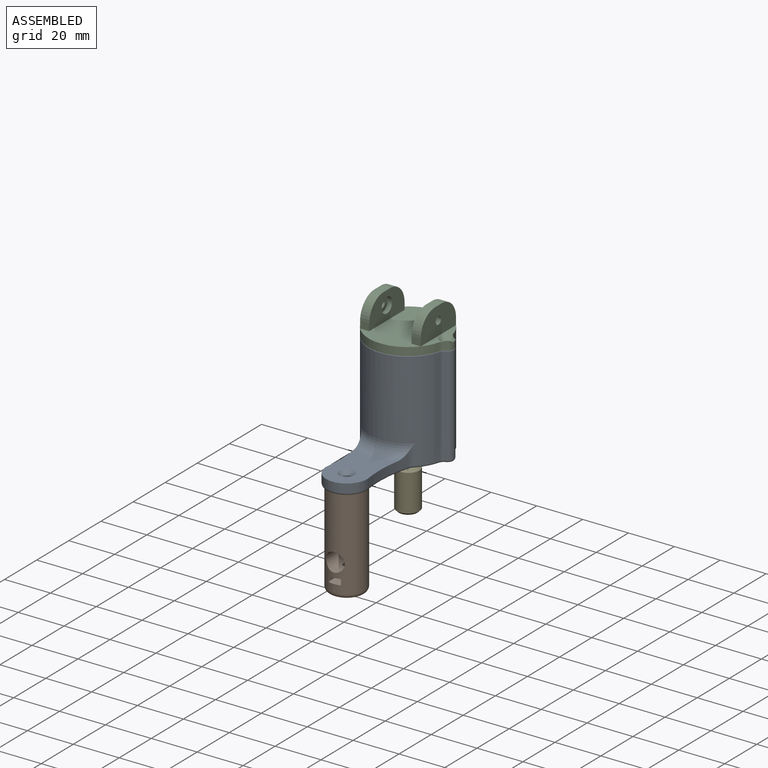
[diagram: assembled view]
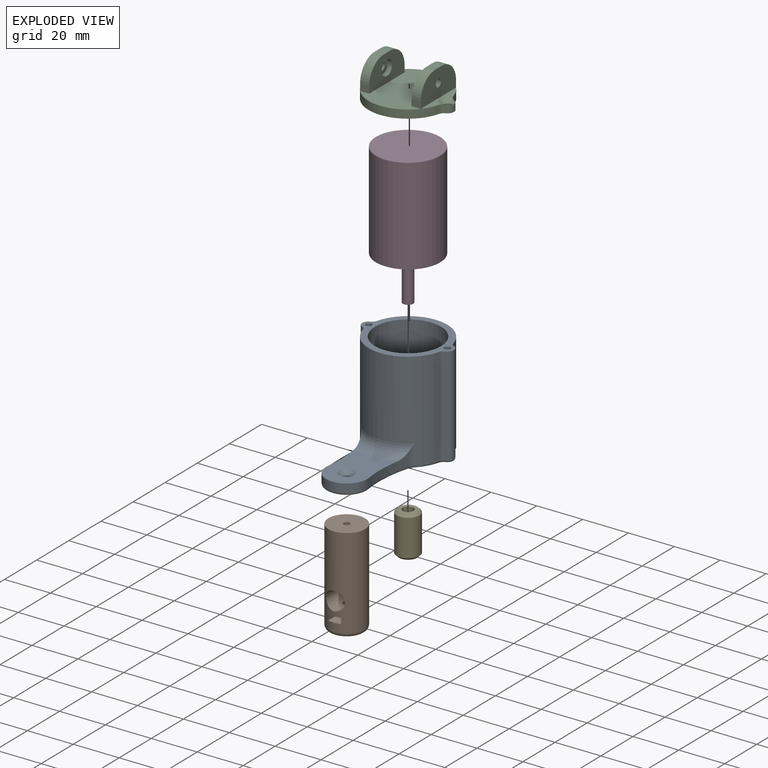
[diagram: exploded view]
GUIDED TOUR — MATED ASSEMBLY (Onshape document 24f0f6765a08515562113c64, AutoMate assembly 24f0f6765a08515562113c64_f87d265b5270cda58fc90bda_ae3d6f59af5e1648294b50b5_default)

This assembly has 5 components, labeled P0..P4 below (a component is one placed occurrence of a part; the same part can appear more than once), held together by 4 mates. A mate is a constraint between two components; its type names the relative motion it leaves free:
  FASTENED — locks the two components together rigidly (no relative motion),
  REVOLUTE — leaves rotation about the listed axis free (a hinge).
Axis/direction vectors are unit vectors and 'through' points are millimeter coordinates, both in the assembly's world frame.

MATES
  1. FASTENED "Fastened 1": P3 <-> P0, direction (0.000, 0.000, -1.000) through (-22.77, -10.39, -9.58) mm
  2. REVOLUTE "Revolute 1": P4 <-> P3, axis (0.000, 0.000, 1.000) through (-30.77, -10.39, -29.03) mm
  3. FASTENED "Fastened 2": P1 <-> P0, direction (0.000, 0.000, 1.000) through (-30.77, -48.59, -10.58) mm
  4. FASTENED "Fastened 3": P2 <-> P0, direction (0.000, 0.000, -1.000) through (-47.97, -10.39, 33.62) mm

ASSEMBLY ORDER
  1. P0 — the base component [order heuristic]
  2. P3 — core [order heuristic]
  3. P4 — core [order heuristic]
  4. P1 [order verified]
  5. P2 [order verified]
Order-tag legend:
  [order verified] — this step's position reverses a verified removal order: the component was checked to insert without passing through the ones already placed.
  [order heuristic] — the first 3 components form the assembly's core: parts whose collision-free extraction could not be verified, listed in mate-graph order.

Of the 5 components, 3 carry the full construction recipe — the FeatureScript program that regenerates the part's solid from scratch; the rest are supplied as boundary geometry only.
Each toured component is shown spotlighted twice — in the assembled view, then in the exploded view, where a leader line traces a displaced component back to its assembled socket (saturated green if recipe-attached, orange if geometry-only; every other component desaturated gray) — followed by its recipe or geometry summary and the mates that hold it.
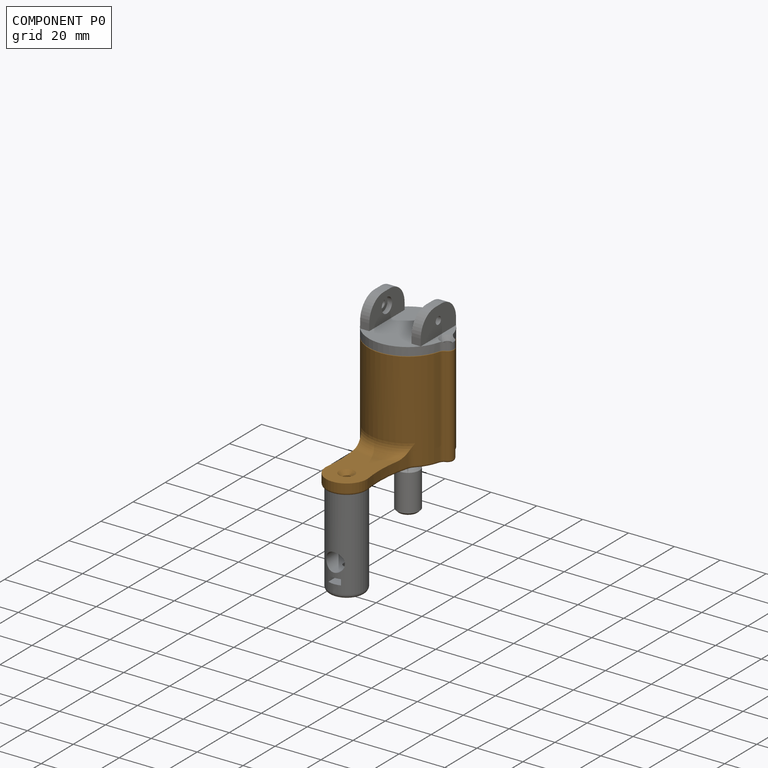
[diagram: component P0 — assembled]
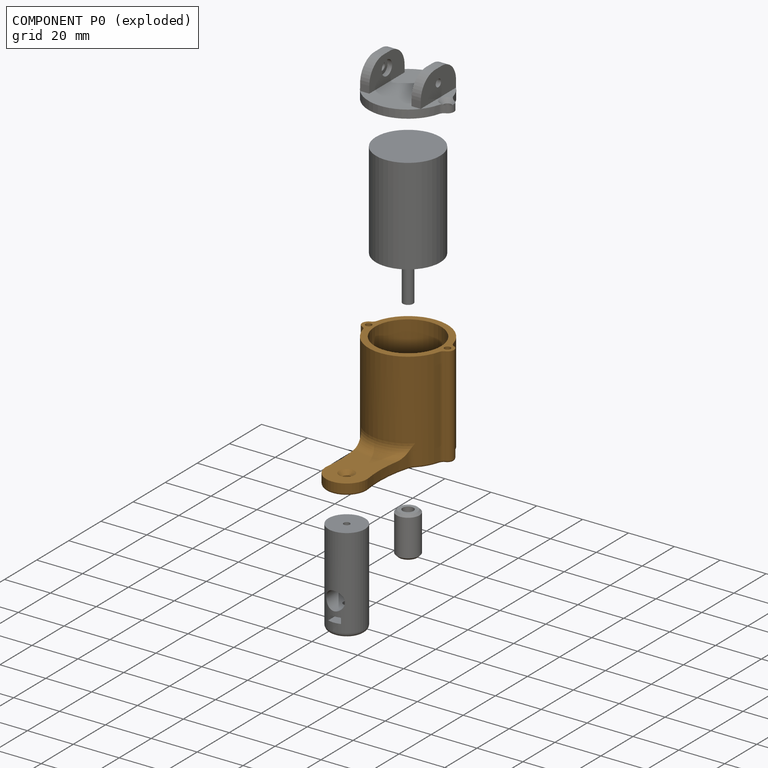
[diagram: component P0 — exploded]
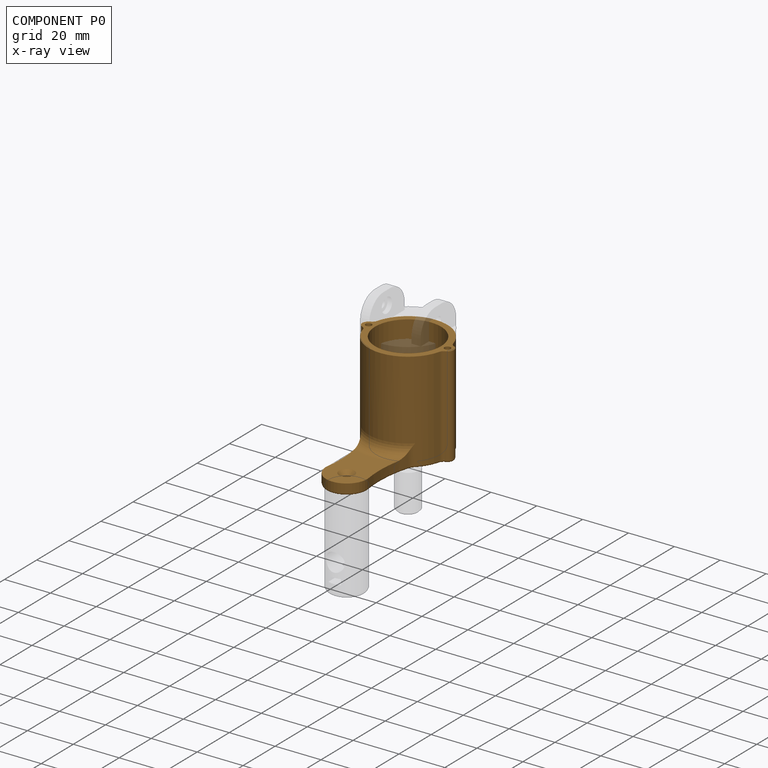
[diagram: component P0 — x-ray view]
COMPONENT P0 — geometry summary (no construction recipe available for this part):
  bounding box: 66.6 x 44.0 x 40.5 mm
  B-rep topology: 1 solid, 42 faces, 202 edges
  volume: 16258 mm^3 (14% of its bounding box)
  symmetry: mirror-symmetric across its x mid-plane
Held by: FASTENED mate "Fastened 1" to P3; FASTENED mate "Fastened 2" to P1; FASTENED mate "Fastened 3" to P2.
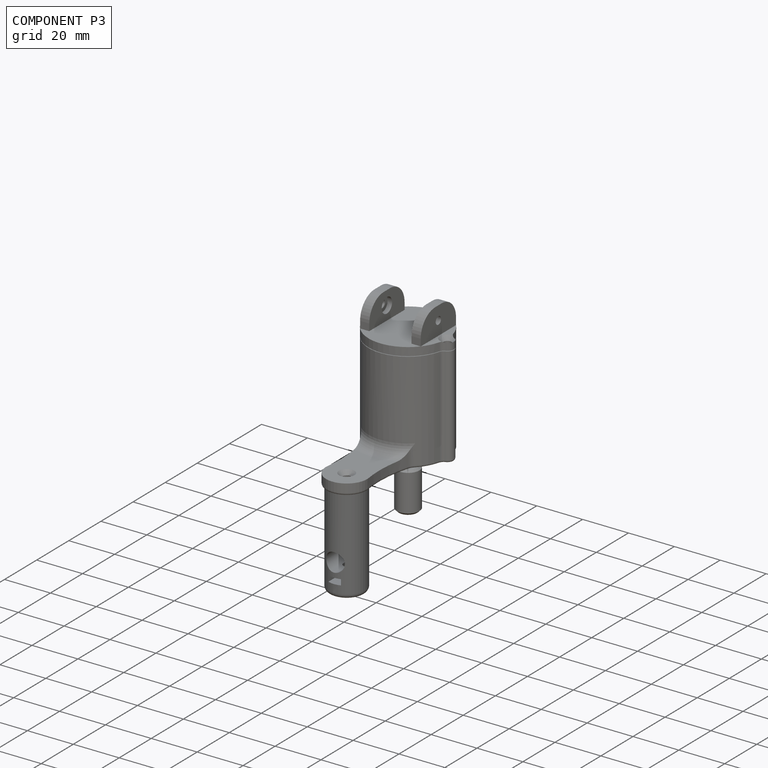
[diagram: component P3 — assembled]
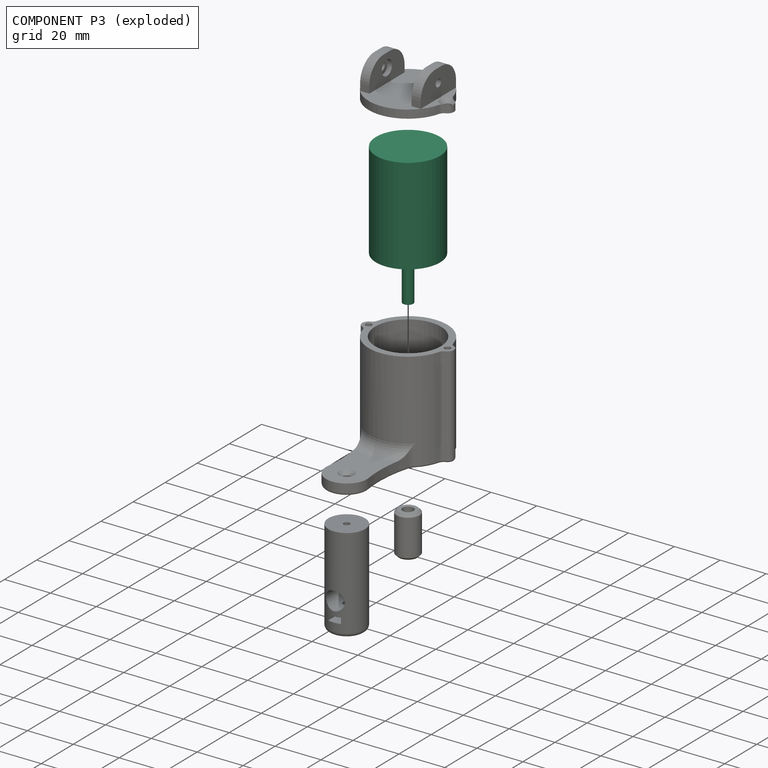
[diagram: component P3 — exploded]
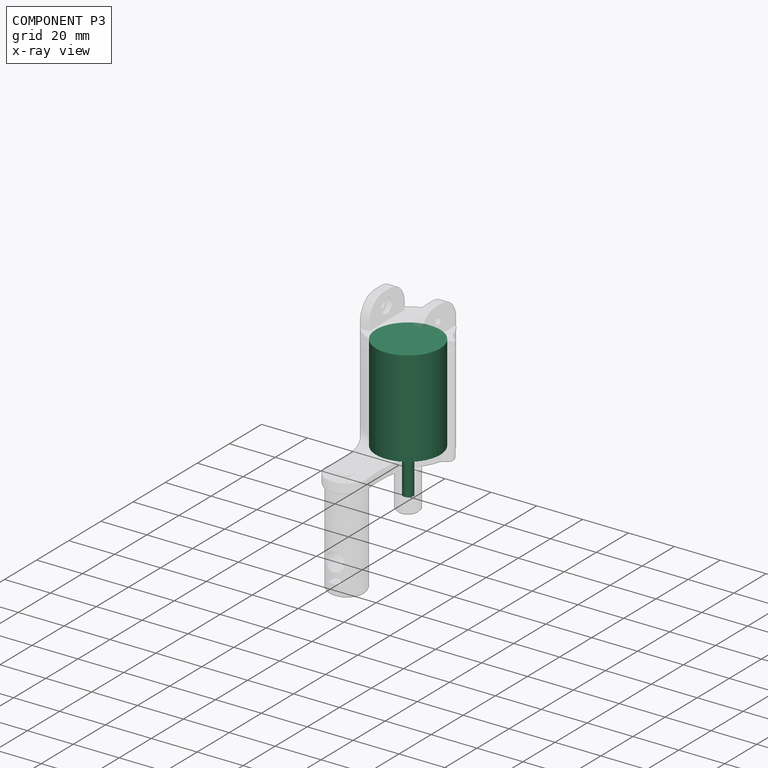
[diagram: component P3 — x-ray view]
COMPONENT P3 — recipe-attached (CADFS 00420545, mesh-verified: the recipe's output STEP matches this component's geometry to below the mesh-comparison resolution (tessellation chordal tolerance ~0.11 mm)).
Held by: FASTENED mate "Fastened 1" to P0; REVOLUTE mate "Revolute 1" to P4.
Construction recipe (FeatureScript — the CAD program that rebuilds this solid; sketch coordinates are in the units given by the * unit suffixes, e.g. mm):

FeatureScript 1511;
import(path : "onshape/std/geometry.fs", version : "1511.0");
import(path : "onshape/std/common.fs", version : "1511.0");
const mm = millimeter;
const VERTEX = EntityType.VERTEX;
const EDGE = EntityType.EDGE;
const FACE = EntityType.FACE;
const BODY = EntityType.BODY;
function v(x, y){return vector(x, y);}
function OD(order){return orderDisambiguation(order);}
function OSD(set){return originalSetDisambiguation(set);}
function TD(topology){return topologyDisambiguation(topology);}
function TDD(query){return trueDependencyDisambiguation(query);}
function sQuery(a, b, c) {return sketchEntityQuery(a, b, c);}

annotation { "Feature Type Name" : "Feature", "Feature Type Description" : "" }
export const myFeature = defineFeature(function(context is Context, id is Id, definition is map)
    precondition{}
    {
        {
            var Q0;
            Q0=qCreatedBy(makeId("Top.planeOp"),FACE);
            var sketch = newSketch(context, id + "F0", { "sketchPlane" : qUnion([Q0])});
            skCircle(sketch, "E0", {"center": v(0, 0) * mm, "radius": 14 * mm});
            skSolve(sketch);
        }
        {
            var Q0;
            Q0=makeQuery(id+"F0.imprint","IMPRINT",FACE,{"disambiguationData":[TD([[makeQuery(id+"F0.imprint","IMPRINT",EDGE,{"derivedFrom":sQuery(id+"F0.wireOp",EDGE,"E0")}),1.0]])]});
            extrude(context, id + "F1", {"entities" : qUnion([Q0]), "depth" : 42 * mm});
        }
        {
            var Q0;
            Q0=makeQuery(id+"F1.opExtrude","CAP_FACE",FACE,{"disambiguationData":[OSD([sQuery(id+"F0.wireOp",EDGE,"E0")])],"isStart":false});
            var sketch = newSketch(context, id + "F2", { "sketchPlane" : qUnion([Q0])});
            skCircle(sketch, "E1", {"center": v(0, 0) * mm, "radius": 5 * mm});
            skPoint(sketch, "E2", {"position": v(-8, 0) * mm});
            skPoint(sketch, "E3", {"position": v(8, 0) * mm});
            skSolve(sketch);
        }
        {
            var Q0;
            Q0=makeQuery(id+"F2.imprint","IMPRINT",FACE,{"disambiguationData":[TD([[makeQuery(id+"F2.imprint","IMPRINT",EDGE,{"derivedFrom":sQuery(id+"F2.wireOp",EDGE,"E1")}),1.0]])]});
            extrude(context, id + "F3", {"entities" : qUnion([Q0]), "operationType" : NewBodyOperationType.ADD, "depth" : 2.2 * mm});
        }
        {
            var Q0;
            Q0=makeQuery(id+"F3.opExtrude","CAP_FACE",FACE,{"disambiguationData":[OSD([sQuery(id+"F2.wireOp",EDGE,"E1")])],"isStart":false});
            var sketch = newSketch(context, id + "F4", { "sketchPlane" : qUnion([Q0])});
            skCircle(sketch, "E4", {"center": v(0, 0) * mm, "radius": 2.25 * mm});
            skSolve(sketch);
        }
        {
            var Q0;
            Q0=makeQuery(id+"F4.imprint","IMPRINT",FACE,{"disambiguationData":[TD([[makeQuery(id+"F4.imprint","IMPRINT",EDGE,{"derivedFrom":sQuery(id+"F4.wireOp",EDGE,"E4")}),1.0]])]});
            extrude(context, id + "F5", {"entities" : qUnion([Q0]), "operationType" : NewBodyOperationType.ADD, "depth" : (22 - 4.75) * mm});
        }
        {
            var Q0;
            Q0=sQuery(id+"F2.wireOp",VERTEX,"E2");
            var Q1;
            Q1=sQuery(id+"F2.wireOp",VERTEX,"E3");
            var Q2;
            Q2=makeQuery(id+"F1.opExtrude","SWEPT_BODY",BODY,{"disambiguationData":[OSD([sQuery(id+"F0.wireOp",EDGE,"E0")])]});
            hole(context, id + "F6", {"style" : HoleStyle.SIMPLE, "endStyle" : HoleEndStyle.BLIND, "holeDiameter" : 2.2 * mm, "holeDepth" : 4 * mm, "isTappedThrough" : true, "tappedDepth" : 12 * mm, "tapClearance" : 3, "locations" : qUnion([Q0, Q1]), "scope" : qUnion([Q2])});
        }
    });
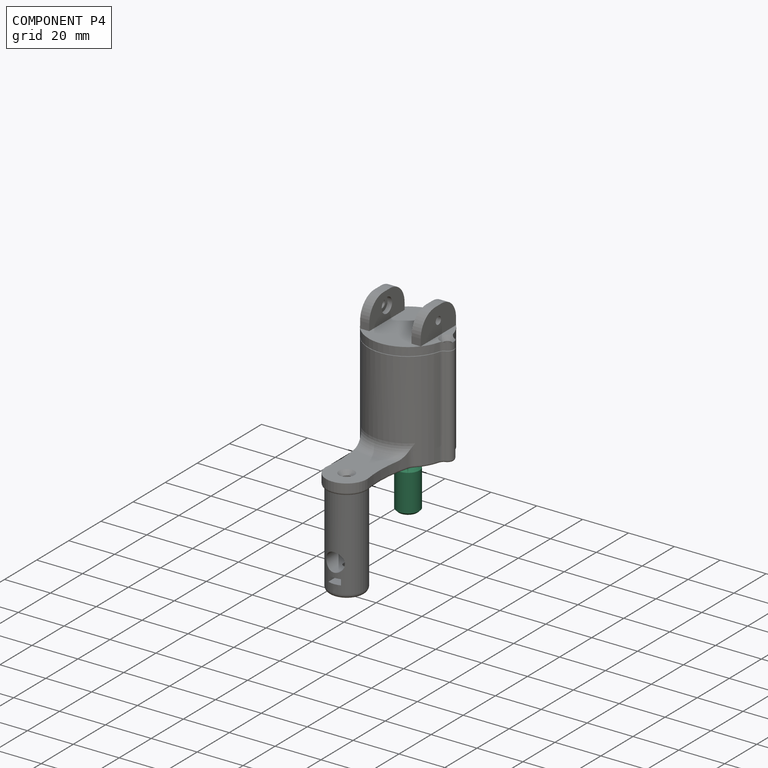
[diagram: component P4 — assembled]
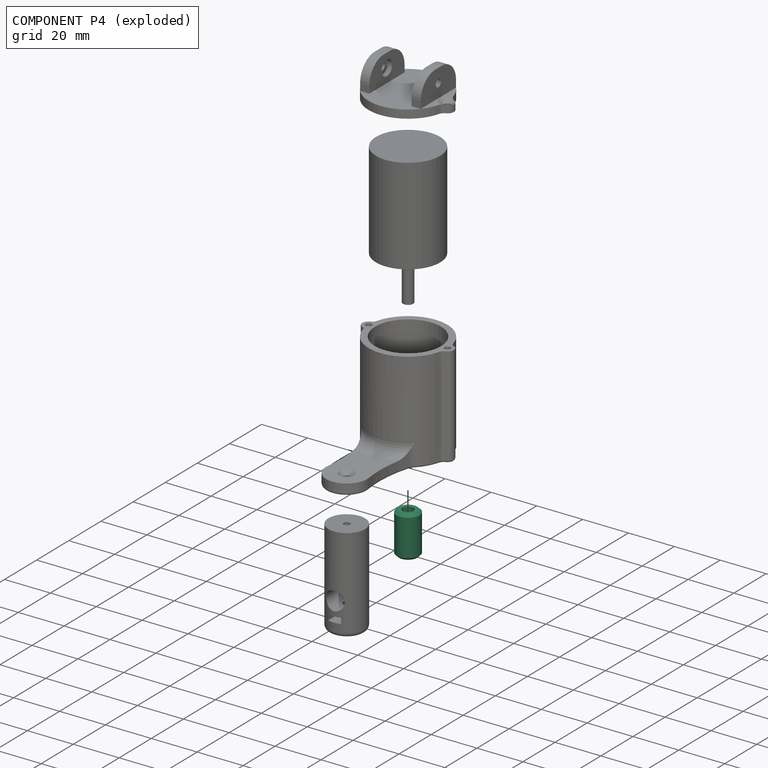
[diagram: component P4 — exploded]
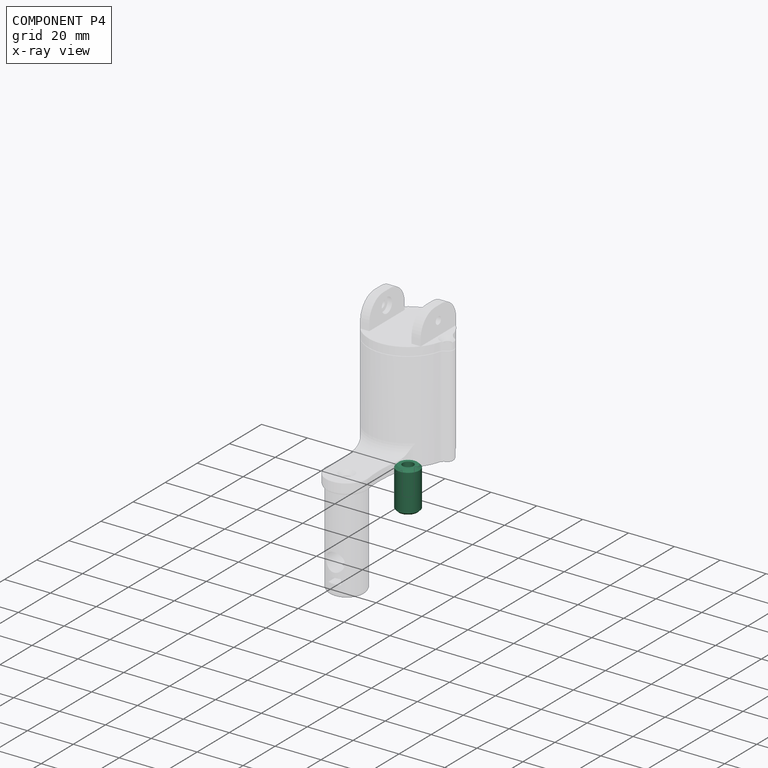
[diagram: component P4 — x-ray view]
COMPONENT P4 — recipe-attached (CADFS 00420546, mesh-verified: the recipe's output STEP matches this component's geometry to below the mesh-comparison resolution (tessellation chordal tolerance ~0.0343 mm)).
Held by: REVOLUTE mate "Revolute 1" to P3.
Construction recipe (FeatureScript — the CAD program that rebuilds this solid; sketch coordinates are in the units given by the * unit suffixes, e.g. mm):

FeatureScript 1511;
import(path : "onshape/std/geometry.fs", version : "1511.0");
import(path : "onshape/std/common.fs", version : "1511.0");
const mm = millimeter;
const VERTEX = EntityType.VERTEX;
const EDGE = EntityType.EDGE;
const FACE = EntityType.FACE;
const BODY = EntityType.BODY;
function v(x, y){return vector(x, y);}
function OD(order){return orderDisambiguation(order);}
function OSD(set){return originalSetDisambiguation(set);}
function TD(topology){return topologyDisambiguation(topology);}
function TDD(query){return trueDependencyDisambiguation(query);}
function sQuery(a, b, c) {return sketchEntityQuery(a, b, c);}

annotation { "Feature Type Name" : "Feature", "Feature Type Description" : "" }
export const myFeature = defineFeature(function(context is Context, id is Id, definition is map)
    precondition{}
    {
        {
            var Q0;
            Q0=qCreatedBy(makeId("Top.planeOp"),FACE);
            var sketch = newSketch(context, id + "F0", { "sketchPlane" : qUnion([Q0])});
            skCircle(sketch, "E0", {"center": v(0, 0) * mm, "radius": 5 * mm});
            skSolve(sketch);
        }
        {
            var Q0;
            Q0=makeQuery(id+"F0.imprint","IMPRINT",FACE,{"disambiguationData":[TD([[makeQuery(id+"F0.imprint","IMPRINT",EDGE,{"derivedFrom":sQuery(id+"F0.wireOp",EDGE,"E0")}),1.0]])]});
            extrude(context, id + "F1", {"entities" : qUnion([Q0]), "depth" : 18 * mm});
        }
        {
            var Q0;
            Q0=makeQuery(id+"F1.opExtrude","CAP_FACE",FACE,{"disambiguationData":[OSD([sQuery(id+"F0.wireOp",EDGE,"E0")])],"isStart":false});
            var sketch = newSketch(context, id + "F2", { "sketchPlane" : qUnion([Q0])});
            skCircle(sketch, "E1", {"center": v(0, 0) * mm, "radius": 2.4 * mm});
            skSolve(sketch);
        }
        {
            var Q0;
            Q0=makeQuery(id+"F2.imprint","IMPRINT",FACE,{"disambiguationData":[TD([[makeQuery(id+"F2.imprint","IMPRINT",EDGE,{"derivedFrom":sQuery(id+"F2.wireOp",EDGE,"E1")}),1.0]])]});
            extrude(context, id + "F3", {"entities" : qUnion([Q0]), "operationType" : NewBodyOperationType.REMOVE, "oppositeDirection" : true, "depth" : 12 * mm});
        }
        {
            var Q0;
            Q0=makeQuery(id+"F1.opExtrude","CAP_FACE",FACE,{"disambiguationData":[OSD([sQuery(id+"F0.wireOp",EDGE,"E0")])],"isStart":true});
            var sketch = newSketch(context, id + "F4", { "sketchPlane" : qUnion([Q0])});
            skCircle(sketch, "E2", {"center": v(1.2, 0) * mm, "radius": 1.6 * mm});
            skSolve(sketch);
        }
        {
            var Q0;
            Q0=makeQuery(id+"F4.imprint","IMPRINT",FACE,{"disambiguationData":[TD([[makeQuery(id+"F4.imprint","IMPRINT",EDGE,{"derivedFrom":sQuery(id+"F4.wireOp",EDGE,"E2")}),1.0]])]});
            extrude(context, id + "F5", {"entities" : qUnion([Q0]), "operationType" : NewBodyOperationType.REMOVE, "oppositeDirection" : true, "depth" : 5 * mm});
        }
        {
            var Q0;
            Q0=makeQuery(id+"F5.boolean.opBoolean","COPY",FACE,{"derivedFrom":makeQuery(id+"F5.opExtrude","CAP_FACE",FACE,{"disambiguationData":[OSD([sQuery(id+"F4.wireOp",EDGE,"E2")])],"isStart":false})});
            var Q1;
            Q1=makeQuery(id+"F3.boolean.opBoolean","COPY",FACE,{"derivedFrom":makeQuery(id+"F3.opExtrude","CAP_FACE",FACE,{"disambiguationData":[OSD([sQuery(id+"F2.wireOp",EDGE,"E1")])],"isStart":false})});
            chamfer(context, id + "F6", {"entities" : qUnion([Q0, Q1]), "width" : .6 * mm, "tangentPropagation" : true});
        }
        {
            var Q0;
            Q0=makeQuery(id+"F1.opExtrude","CAP_EDGE",EDGE,{"disambiguationData":[OSD([sQuery(id+"F0.wireOp",EDGE,"E0")])],"isStart":true});
            var Q1;
            Q1=makeQuery(id+"F1.opExtrude","CAP_EDGE",EDGE,{"disambiguationData":[OSD([sQuery(id+"F0.wireOp",EDGE,"E0")])],"isStart":false});
            chamfer(context, id + "F7", {"entities" : qUnion([Q0, Q1]), "width" : 1 * mm, "tangentPropagation" : true});
        }
    });
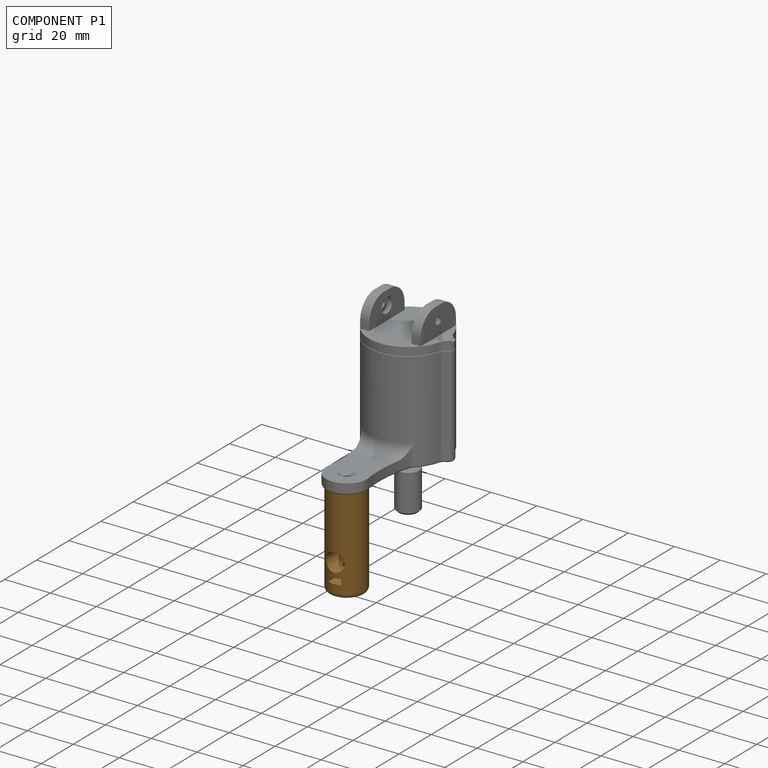
[diagram: component P1 — assembled]
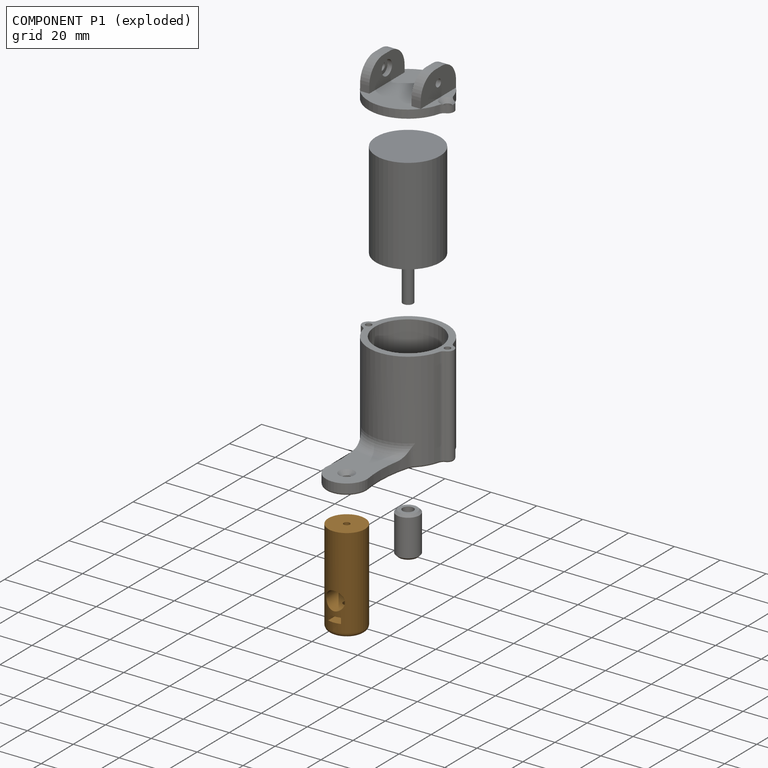
[diagram: component P1 — exploded]
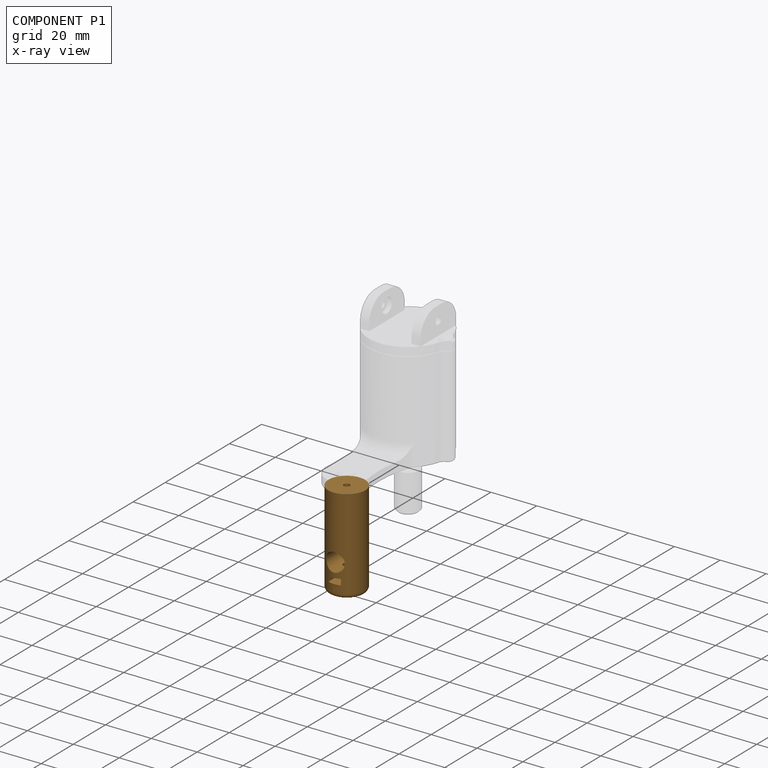
[diagram: component P1 — x-ray view]
COMPONENT P1 — geometry summary (no construction recipe available for this part):
  bounding box: 41.4 x 17.3 x 17.3 mm
  B-rep topology: 1 solid, 13 faces, 58 edges
  volume: 7103 mm^3 (57% of its bounding box)
  symmetry: 2-fold rotationally symmetric about the z axis; mirror-symmetric across its x mid-plane, y mid-plane
Held by: FASTENED mate "Fastened 2" to P0.
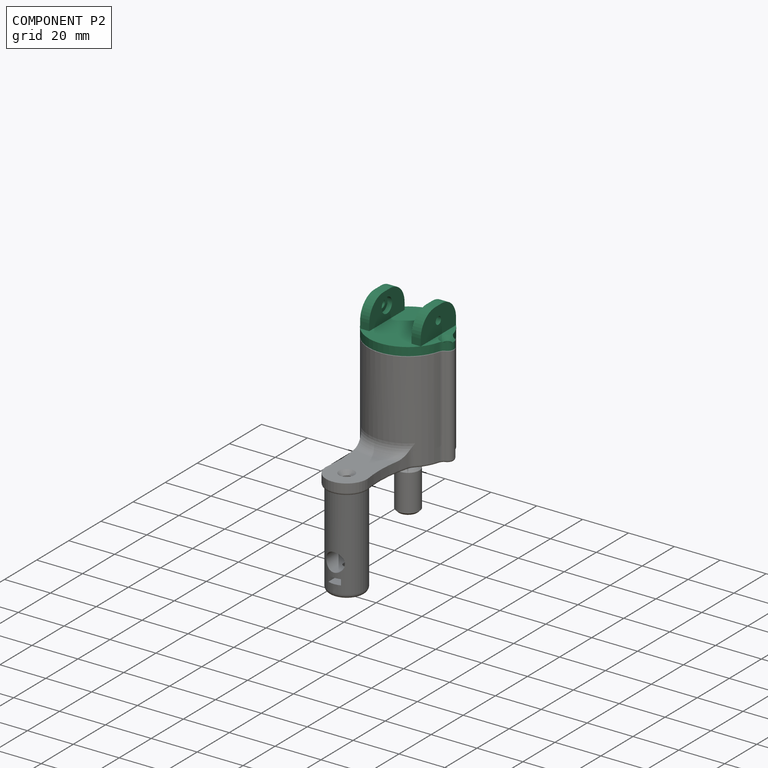
[diagram: component P2 — assembled]
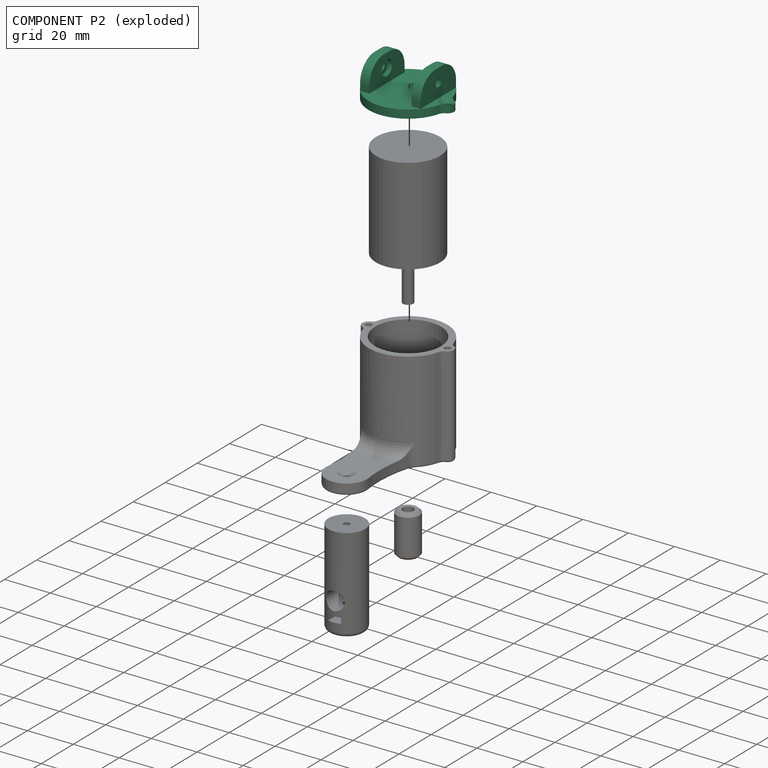
[diagram: component P2 — exploded]
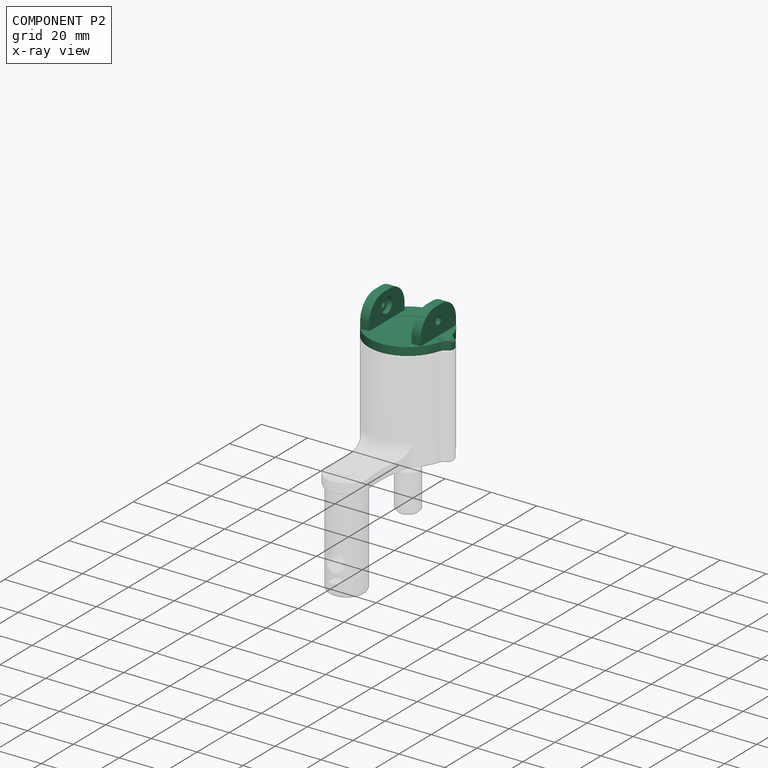
[diagram: component P2 — x-ray view]
COMPONENT P2 — recipe-attached (CADFS 00420541, mesh-verified: the recipe's output STEP matches this component's geometry to below the mesh-comparison resolution (tessellation chordal tolerance ~0.0825 mm)).
Held by: FASTENED mate "Fastened 3" to P0.
Construction recipe (FeatureScript — the CAD program that rebuilds this solid; sketch coordinates are in the units given by the * unit suffixes, e.g. mm):

FeatureScript 1511;
import(path : "onshape/std/geometry.fs", version : "1511.0");
import(path : "onshape/std/common.fs", version : "1511.0");
const mm = millimeter;
const VERTEX = EntityType.VERTEX;
const EDGE = EntityType.EDGE;
const FACE = EntityType.FACE;
const BODY = EntityType.BODY;
function v(x, y){return vector(x, y);}
function OD(order){return orderDisambiguation(order);}
function OSD(set){return originalSetDisambiguation(set);}
function TD(topology){return topologyDisambiguation(topology);}
function TDD(query){return trueDependencyDisambiguation(query);}
function sQuery(a, b, c) {return sketchEntityQuery(a, b, c);}

annotation { "Feature Type Name" : "Feature", "Feature Type Description" : "" }
export const myFeature = defineFeature(function(context is Context, id is Id, definition is map)
    precondition{}
    {
        {
            var Q0;
            Q0=qCreatedBy(makeId("Top.planeOp"),FACE);
            var sketch = newSketch(context, id + "F0", { "sketchPlane" : qUnion([Q0])});
            skArc(sketch, "E0", {"start": v(16.97, 2.8) * mm, "mid": v(0, 17.2) * mm, "end": v(-16.97, 2.8) * mm});
            skArc(sketch, "E1", {"start": v(-16.97, 2.8) * mm, "mid": v(-20, 0) * mm, "end": v(-16.97, -2.8) * mm});
            skArc(sketch, "E2", {"start": v(16.97, -2.8) * mm, "mid": v(20, 0) * mm, "end": v(16.97, 2.8) * mm});
            skArc(sketch, "E3.trimOffspring", {"start": v(-16.97, -2.8) * mm, "mid": v(0, -17.2) * mm, "end": v(16.97, -2.8) * mm});
            skSolve(sketch);
        }
        {
            var Q0;
            Q0=makeQuery(id+"F0.imprint","IMPRINT",FACE,{"disambiguationData":[TD([[makeQuery(id+"F0.imprint","IMPRINT",EDGE,{"derivedFrom":sQuery(id+"F0.wireOp",EDGE,"E0")}),1.0]])]});
            extrude(context, id + "F1", {"entities" : qUnion([Q0]), "depth" : 3.6 * mm});
        }
        {
            var Q0;
            Q0=makeQuery(id+"F1.opExtrude","SWEPT_EDGE",EDGE,{"disambiguationData":[OSD([sQuery(id+"F0.wireOp",EDGE,"E1"),sQuery(id+"F0.wireOp",EDGE,"E3.trimOffspring")])]});
            var Q1;
            Q1=makeQuery(id+"F1.opExtrude","SWEPT_EDGE",EDGE,{"disambiguationData":[OSD([sQuery(id+"F0.wireOp",EDGE,"E2"),sQuery(id+"F0.wireOp",EDGE,"E3.trimOffspring")])]});
            var Q2;
            Q2=makeQuery(id+"F1.opExtrude","SWEPT_EDGE",EDGE,{"disambiguationData":[OSD([sQuery(id+"F0.wireOp",EDGE,"E0"),sQuery(id+"F0.wireOp",EDGE,"E2")])]});
            var Q3;
            Q3=makeQuery(id+"F1.opExtrude","SWEPT_EDGE",EDGE,{"disambiguationData":[OSD([sQuery(id+"F0.wireOp",EDGE,"E0"),sQuery(id+"F0.wireOp",EDGE,"E1")])]});
            fillet(context, id + "F2", {"entities" : qUnion([Q0, Q1, Q2, Q3]), "radius" : 2.8 * mm, "tangentPropagation" : true, "allowEdgeOverflow" : false});
        }
        {
            var Q0;
            Q0=makeQuery(id+"F1.opExtrude","CAP_FACE",FACE,{"disambiguationData":[OSD([sQuery(id+"F0.wireOp",EDGE,"E0"),sQuery(id+"F0.wireOp",EDGE,"E1"),sQuery(id+"F0.wireOp",EDGE,"E2"),sQuery(id+"F0.wireOp",EDGE,"E3.trimOffspring")])],"isStart":false});
            var sketch = newSketch(context, id + "F3", { "sketchPlane" : qUnion([Q0])});
            skPoint(sketch, "E4", {"position": v(-17.2, 0) * mm});
            skPoint(sketch, "E5", {"position": v(17.2, 0) * mm});
            skCircle(sketch, "E6", {"center": v(0, 10) * mm, "radius": 2.5 * mm});
            skLineSegment(sketch, "E7.bottom", {"start": v(-13.22, 11) * mm, "end": v(-9.22, 11) * mm});
            skLineSegment(sketch, "E7.top", {"start": v(-13.22, -11) * mm, "end": v(-9.22, -11) * mm});
            skLineSegment(sketch, "E7.left", {"start": v(-13.22, 11) * mm, "end": v(-13.22, -11) * mm});
            skLineSegment(sketch, "E7.right", {"start": v(-9.22, 11) * mm, "end": v(-9.22, -11) * mm});
            skPoint(sketch, "E7.middle", {"position": v(-11.22, 0) * mm});
            skLineSegment(sketch, "E8.bottom", {"start": v(13.22, -11) * mm, "end": v(9.22, -11) * mm});
            skLineSegment(sketch, "E8.top", {"start": v(13.22, 11) * mm, "end": v(9.22, 11) * mm});
            skLineSegment(sketch, "E8.left", {"start": v(13.22, -11) * mm, "end": v(13.22, 11) * mm});
            skLineSegment(sketch, "E8.right", {"start": v(9.22, -11) * mm, "end": v(9.22, 11) * mm});
            skPoint(sketch, "E8.middle", {"position": v(11.22, 0) * mm});
            skSolve(sketch);
        }
        {
            var Q0;
            Q0=sQuery(id+"F3.wireOp",VERTEX,"E4");
            var Q1;
            Q1=sQuery(id+"F3.wireOp",VERTEX,"E5");
            var Q2;
            Q2=makeQuery(id+"F1.opExtrude","SWEPT_BODY",BODY,{"disambiguationData":[OSD([sQuery(id+"F0.wireOp",EDGE,"E0"),sQuery(id+"F0.wireOp",EDGE,"E1"),sQuery(id+"F0.wireOp",EDGE,"E2"),sQuery(id+"F0.wireOp",EDGE,"E3.trimOffspring")])]});
            hole(context, id + "F4", {"style" : HoleStyle.C_SINK, "endStyle" : HoleEndStyle.BLIND, "standardTappedOrClearance" : lookupTablePath({ "standard" : "ISO", "fit" : "Normal", "size" : "M3", "type" : "Clearance" }), "standardBlindInLast" : lookupTablePath({ "fit" : "Standard", "standard" : "ISO", "size" : "M3", "type" : "Clearance" }), "holeDiameter" : 3.3 * mm, "cSinkDiameter" : 6.72 * mm, "cSinkAngle" : 90 * degree, "holeDepth" : 20 * mm, "isTappedThrough" : true, "tappedDepth" : 12 * mm, "tapClearance" : 3, "locations" : qUnion([Q0, Q1]), "scope" : qUnion([Q2])});
        }
        {
            var Q0;
            Q0=makeQuery(id+"F3.imprint","IMPRINT",FACE,{"disambiguationData":[TD([[makeQuery(id+"F3.imprint","IMPRINT",EDGE,{"derivedFrom":sQuery(id+"F3.wireOp",EDGE,"E6")}),1.0]])]});
            extrude(context, id + "F5", {"entities" : qUnion([Q0]), "operationType" : NewBodyOperationType.REMOVE, "endBound" : BoundingType.UP_TO_NEXT, "oppositeDirection" : true, "depth" : 25 * mm});
        }
        {
            var Q0;
            Q0=makeQuery(id+"F3.imprint","IMPRINT",FACE,{"disambiguationData":[TD([[makeQuery(id+"F3.imprint","IMPRINT",EDGE,{"derivedFrom":sQuery(id+"F3.wireOp",EDGE,"E7.bottom")}),-1.0]])]});
            var Q1;
            Q1=makeQuery(id+"F3.imprint","IMPRINT",FACE,{"disambiguationData":[TD([[makeQuery(id+"F3.imprint","IMPRINT",EDGE,{"derivedFrom":sQuery(id+"F3.wireOp",EDGE,"E8.bottom")}),-1.0]])]});
            extrude(context, id + "F6", {"entities" : qUnion([Q0, Q1]), "operationType" : NewBodyOperationType.ADD, "depth" : 12 * mm});
        }
        {
            var Q0;
            Q0=makeQuery(id+"F6.opExtrude","SWEPT_FACE",FACE,{"disambiguationData":[OSD([sQuery(id+"F3.wireOp",EDGE,"E7.right")])]});
            var sketch = newSketch(context, id + "F7", { "sketchPlane" : qUnion([Q0])});
            skPoint(sketch, "E9", {"position": v(0, 9.6) * mm});
            skPoint(sketch, "E9.positionSnap0", {"position": v(-11, 9.6) * mm});
            skPoint(sketch, "E9.positionSnap1", {"position": v(0, 15.6) * mm});
            skSolve(sketch);
        }
        {
            var Q0;
            Q0=makeQuery(id+"F6.opExtrude","SWEPT_FACE",FACE,{"disambiguationData":[OSD([sQuery(id+"F3.wireOp",EDGE,"E8.right")])]});
            var sketch = newSketch(context, id + "F8", { "sketchPlane" : qUnion([Q0])});
            skPoint(sketch, "E10", {"position": v(0, 9.6) * mm});
            skPoint(sketch, "E10.positionSnap0", {"position": v(0, 15.6) * mm});
            skPoint(sketch, "E10.positionSnap1", {"position": v(-11, 9.6) * mm});
            skSolve(sketch);
        }
        {
            var Q0;
            Q0=sQuery(id+"F8.wireOp",VERTEX,"E10");
            var Q1;
            Q1=sQuery(id+"F7.wireOp",VERTEX,"E9");
            var Q2;
            Q2=makeQuery(id+"F1.opExtrude","SWEPT_BODY",BODY,{"disambiguationData":[OSD([sQuery(id+"F0.wireOp",EDGE,"E0"),sQuery(id+"F0.wireOp",EDGE,"E1"),sQuery(id+"F0.wireOp",EDGE,"E2"),sQuery(id+"F0.wireOp",EDGE,"E3.trimOffspring")])]});
            hole(context, id + "F9", {"style" : HoleStyle.C_BORE, "endStyle" : HoleEndStyle.BLIND, "holeDiameter" : 3.3 * mm, "cBoreDiameter" : 6.5 * mm, "cBoreDepth" : 2 * mm, "holeDepth" : 20 * mm, "isTappedThrough" : true, "tappedDepth" : 12 * mm, "tapClearance" : 3, "locations" : qUnion([Q0, Q1]), "scope" : qUnion([Q2])});
        }
        {
            var Q0;
            Q0=makeQuery(id+"F6.opExtrude","CAP_EDGE",EDGE,{"disambiguationData":[OSD([sQuery(id+"F3.wireOp",EDGE,"E8.top")])],"isStart":false});
            var Q1;
            Q1=makeQuery(id+"F6.opExtrude","CAP_EDGE",EDGE,{"disambiguationData":[OSD([sQuery(id+"F3.wireOp",EDGE,"E7.bottom")])],"isStart":false});
            var Q2;
            Q2=makeQuery(id+"F6.opExtrude","CAP_EDGE",EDGE,{"disambiguationData":[OSD([sQuery(id+"F3.wireOp",EDGE,"E7.top")])],"isStart":false});
            var Q3;
            Q3=makeQuery(id+"F6.opExtrude","CAP_EDGE",EDGE,{"disambiguationData":[OSD([sQuery(id+"F3.wireOp",EDGE,"E8.bottom")])],"isStart":false});
            fillet(context, id + "F10", {"entities" : qUnion([Q0, Q1, Q2, Q3]), "radius" : 9 * mm, "tangentPropagation" : true, "allowEdgeOverflow" : false});
        }
    });
PROVENANCE & LICENSES
Assembly (occurrences, transforms, mates, per-part STEP geometry): AutoMate dataset, Zenodo record 7776208, CC0.
Construction recipes: CADFS (HuggingFace VladPyatov/CADFS, CC-BY-4.0, layered over the ABC dataset), FeatureScript reconstruction programs keyed by ABC model id.
Join: ABC meta listings map ABC model id -> Onshape documentId; within a shared document, parts are matched by geometric signature (bounding-box dims + volume at 0.1% relative tolerance, exact B-rep face/solid counts).
Verification: 3 of this assembly's 5 components carry a recipe attachment, and every attachment is mesh-verified: the CADFS STEP and the AutoMate member STEP were compared as meshes in their shared local frame (symmetric sampled-point-to-mesh distance); worst across the 3 attachments: below the mesh-comparison resolution (tessellation chordal tolerance ~0.11 mm) on a 73 mm part.
Renders: orthographic iso camera (az 35 / el 25); the floor grid conveys scale (grid pitch printed in each image; no ruler). In the exploded view each component is displaced by its stored offset vector: the offsets alone carry the explosion direction (mate normal/axis signs are not orientation cues and do not encode it), and separation distances are assigned per mate-chain, not proportionally to assembly-order depth.
